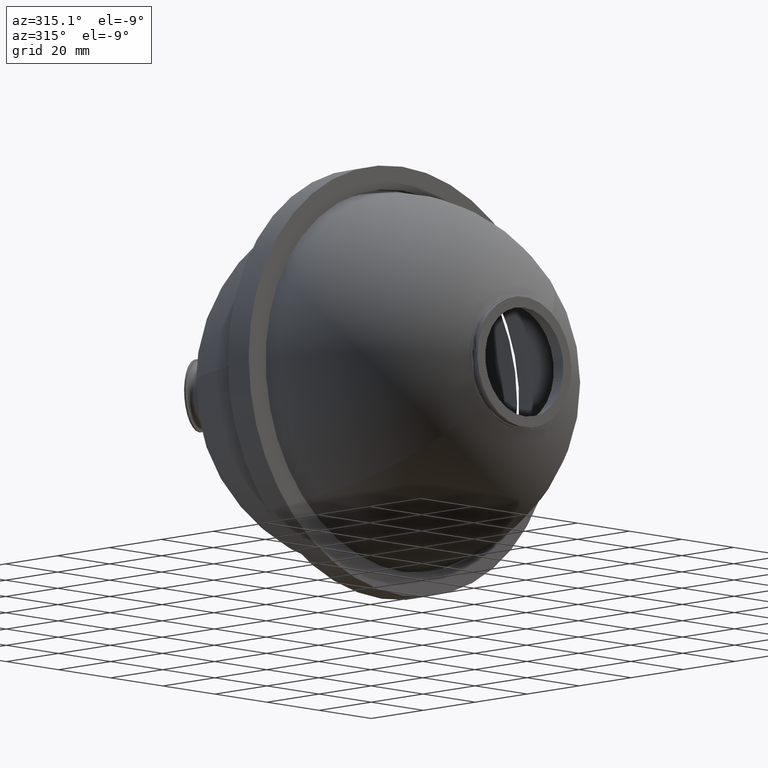
[diagram: clean part render]
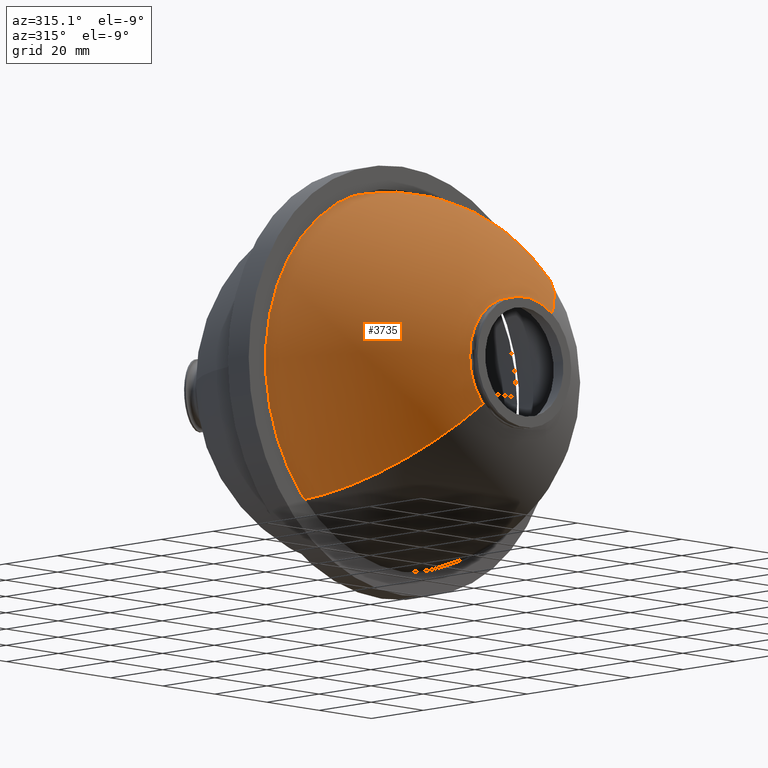
[diagram: same view with one face highlighted and labeled with its STEP entity id]
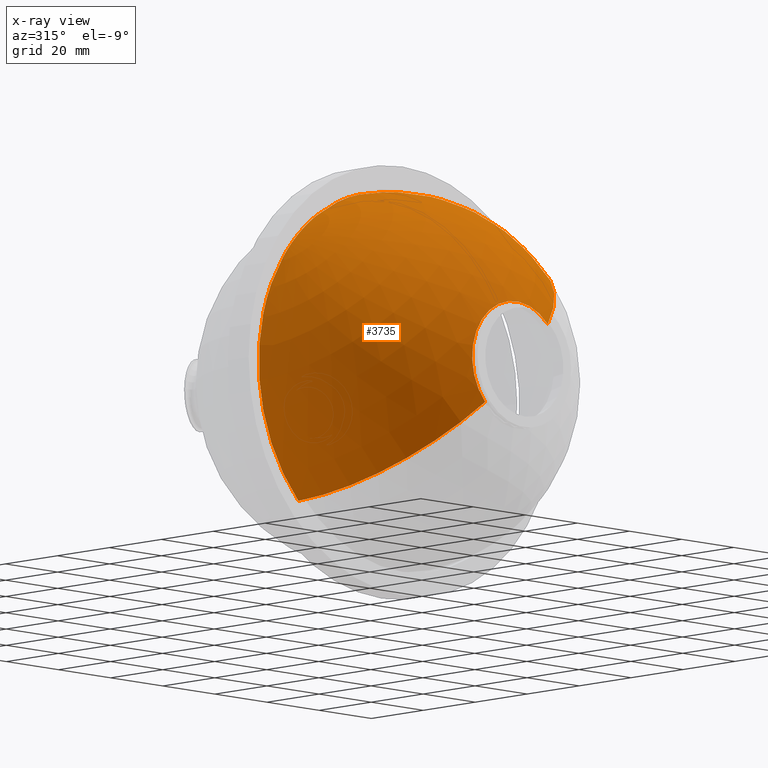
[diagram: x-ray of the same camera — body ghosted, the highlighted face saturated]
A machine part, auxiliary view. The second image highlights one B-rep face of the part: STEP entity #3735.
The next image is the same camera in x-ray: the body ghosted, the highlighted face saturated — about 0% of this face is hidden behind the body in this view.
In plain terms, the highlighted spherical surface has radius 52 mm.
Its self-contained STEP definition (entity closure, byte-faithful):
#184 = EDGE_CURVE ( 'NONE', #6310, #5118, #4897, .T. ) ;
#198 = ORIENTED_EDGE ( 'NONE', *, *, #6621, .T. ) ;
#273 = CARTESIAN_POINT ( 'NONE',  ( 8.484018949608364224, -67.85351538840666308, -3.227405511845264343E-13 ) ) ;
#598 = AXIS2_PLACEMENT_3D ( 'NONE', #3951, #4345, #5898 ) ;
#730 = DIRECTION ( 'NONE',  ( -0.000000000000000000, -1.000000000000000000, -0.000000000000000000 ) ) ;
#895 = VERTEX_POINT ( 'NONE', #2131 ) ;
#1134 = DIRECTION ( 'NONE',  ( -0.7071067811865364705, 0.000000000000000000, -0.7071067811865586750 ) ) ;
#1174 = EDGE_CURVE ( 'NONE', #3774, #5118, #3527, .T. ) ;
#1311 = SPHERICAL_SURFACE ( 'NONE', #6509, 52.00000000000000000 ) ;
#1788 = CIRCLE ( 'NONE', #598, 52.00000000000000711 ) ;
#1883 = AXIS2_PLACEMENT_3D ( 'NONE', #5354, #730, #4821 ) ;
#2131 = CARTESIAN_POINT ( 'NONE',  ( 20.50483422977953651, -67.85351538840666308, 12.02081528017122558 ) ) ;
#2808 = ORIENTED_EDGE ( 'NONE', *, *, #4969, .T. ) ;
#2953 = DIRECTION ( 'NONE',  ( -0.7071067811865585639, 0.000000000000000000, 0.7071067811865364705 ) ) ;
#2990 = AXIS2_PLACEMENT_3D ( 'NONE', #5159, #5660, #1134 ) ;
#3387 = FACE_OUTER_BOUND ( 'NONE', #6113, .T. ) ;
#3432 = DIRECTION ( 'NONE',  ( 0.7071067811865584529, 0.000000000000000000, -0.7071067811865365815 ) ) ;
#3527 = CIRCLE ( 'NONE', #2990, 52.00000000000000000 ) ;
#3735 = ADVANCED_FACE ( 'NONE', ( #3387 ), #1311, .T. ) ;
#3774 = VERTEX_POINT ( 'NONE', #5904 ) ;
#3781 = ORIENTED_EDGE ( 'NONE', *, *, #1174, .F. ) ;
#3951 = CARTESIAN_POINT ( 'NONE',  ( 8.484018949608364224, -18.71086588718419819, -3.227405511845264343E-13 ) ) ;
#3996 = CARTESIAN_POINT ( 'NONE',  ( -28.25832719213874356, -20.71086588718419819, -36.74234614174859104 ) ) ;
#4032 = CIRCLE ( 'NONE', #6166, 17.00000000000001421 ) ;
#4345 = DIRECTION ( 'NONE',  ( -0.7071067811865586750, 0.000000000000000000, 0.7071067811865365815 ) ) ;
#4821 = DIRECTION ( 'NONE',  ( -0.7071067811865586750, 0.000000000000000000, 0.7071067811865363595 ) ) ;
#4897 = CIRCLE ( 'NONE', #1883, 51.96152422706635576 ) ;
#4900 = CARTESIAN_POINT ( 'NONE',  ( 8.484018949608364224, -18.71086588718419819, -3.227405511845264343E-13 ) ) ;
#4969 = EDGE_CURVE ( 'NONE', #3774, #895, #4032, .T. ) ;
#5118 = VERTEX_POINT ( 'NONE', #3996 ) ;
#5159 = CARTESIAN_POINT ( 'NONE',  ( 8.484018949608364224, -18.71086588718419819, -3.227405511845264343E-13 ) ) ;
#5354 = CARTESIAN_POINT ( 'NONE',  ( 8.484018949608364224, -20.71086588718419819, -3.227405511845264343E-13 ) ) ;
#5366 = DIRECTION ( 'NONE',  ( 0.000000000000000000, 1.000000000000000000, 0.000000000000000000 ) ) ;
#5477 = DIRECTION ( 'NONE',  ( 0.7071067811865365815, 0.000000000000000000, 0.7071067811865585639 ) ) ;
#5660 = DIRECTION ( 'NONE',  ( 0.7071067811865587860, 0.000000000000000000, -0.7071067811865364705 ) ) ;
#5898 = DIRECTION ( 'NONE',  ( 0.7071067811865365815, 0.000000000000000000, 0.7071067811865584529 ) ) ;
#5904 = CARTESIAN_POINT ( 'NONE',  ( -3.536796330562807178, -67.85351538840666308, -12.02081528017187217 ) ) ;
#6016 = ORIENTED_EDGE ( 'NONE', *, *, #184, .T. ) ;
#6113 = EDGE_LOOP ( 'NONE', ( #3781, #2808, #198, #6016 ) ) ;
#6166 = AXIS2_PLACEMENT_3D ( 'NONE', #273, #5366, #2953 ) ;
#6310 = VERTEX_POINT ( 'NONE', #6421 ) ;
#6421 = CARTESIAN_POINT ( 'NONE',  ( 45.22636509135548266, -20.71086588718419819, 36.74234614174793734 ) ) ;
#6509 = AXIS2_PLACEMENT_3D ( 'NONE', #4900, #3432, #5477 ) ;
#6621 = EDGE_CURVE ( 'NONE', #895, #6310, #1788, .T. ) ;